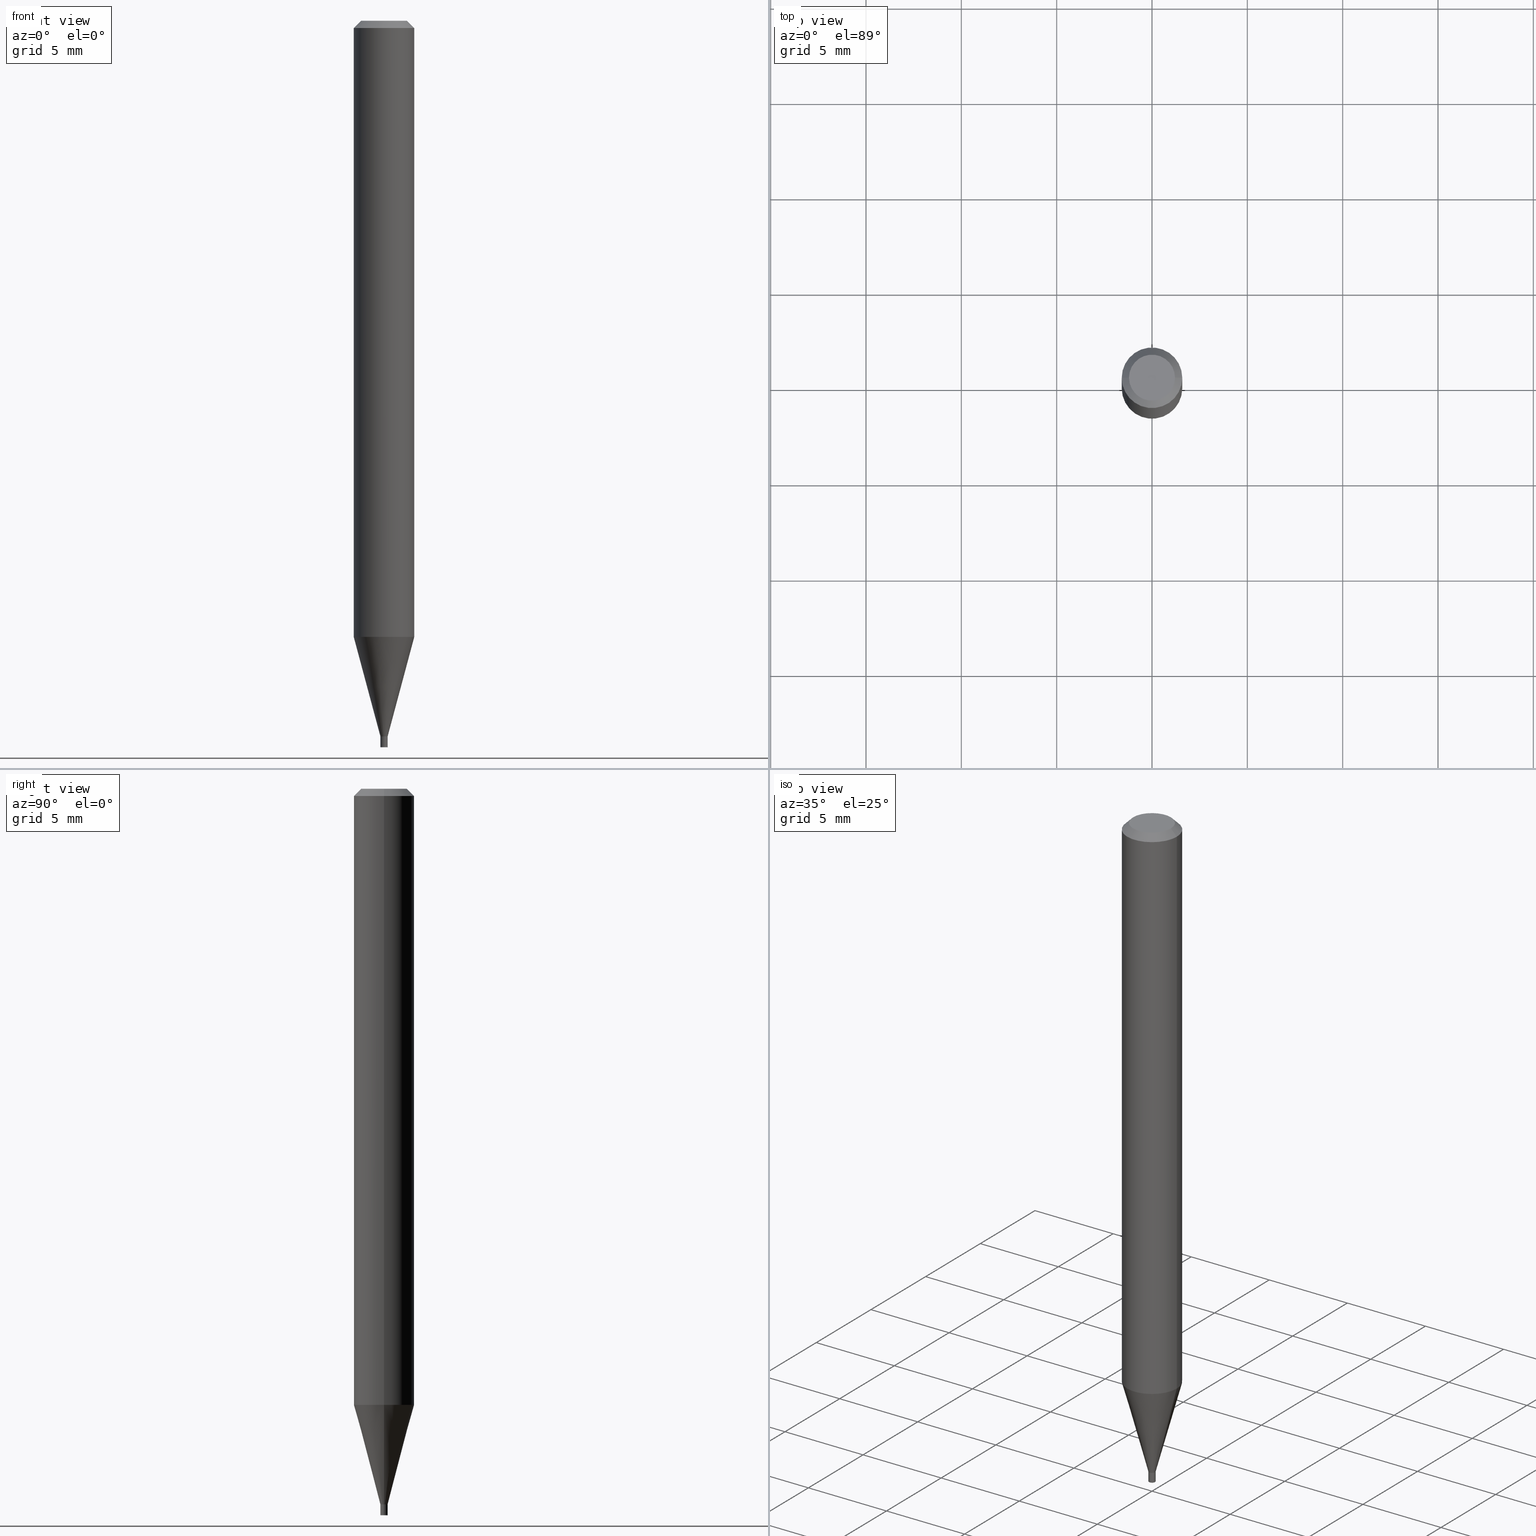
[diagram: canonical four-view strip — front | top / right | iso, engineering-drawing reading convention]
A machine part, canonical four-view strip (front | top / right | iso — engineering-drawing reading convention). The complete STEP part file that produces these views, byte-faithful:
ISO-10303-21;
HEADER;
FILE_DESCRIPTION (( 'STEP AP203' ),
    '1' );
FILE_NAME ('04050.STEP',
    '2024-03-14T16:55:30',
    ( '' ),
    ( '' ),
    'SwSTEP 2.0',
    'SolidWorks 2023',
    '' );
FILE_SCHEMA (( 'CONFIG_CONTROL_DESIGN' ));
ENDSEC;

DATA;
#1 = VERTEX_POINT ( 'NONE', #391 ) ;
#2 = PRODUCT_DEFINITION_SHAPE ( 'NONE', 'NONE',  #270 ) ;
#3 = ADVANCED_FACE ( 'NONE', ( #430 ), #123, .T. ) ;
#4 = ORIENTED_EDGE ( 'NONE', *, *, #354, .T. ) ;
#5 = VECTOR ( 'NONE', #232, 39.37007874015748143 ) ;
#6 = LOCAL_TIME ( 12, 55, 30.00000000000000000, #138 ) ;
#7 = DIRECTION ( 'NONE',  ( -2.445468806185136597E-29, 3.491481338843145583E-15, 1.000000000000000000 ) ) ;
#8 = CC_DESIGN_PERSON_AND_ORGANIZATION_ASSIGNMENT ( #60, #130, ( #408 ) ) ;
#9 = CARTESIAN_POINT ( 'NONE',  ( 0.000000000000000000, 0.000000000000000000, 0.000000000000000000 ) ) ;
#10 = ADVANCED_FACE ( 'NONE', ( #181 ), #332, .F. ) ;
#11 = DIRECTION ( 'NONE',  ( 1.000000000000000000, -6.982962677686333764E-15, 0.000000000000000000 ) ) ;
#12 = CARTESIAN_POINT ( 'NONE',  ( -0.007499999999999999722, -5.144652138020725996E-15, -1.477500000000000036 ) ) ;
#13 = VECTOR ( 'NONE', #328, 39.37007874015748143 ) ;
#14 = CARTESIAN_POINT ( 'NONE',  ( 0.000000000000000000, 0.000000000000000000, 0.000000000000000000 ) ) ;
#15 = CARTESIAN_POINT ( 'NONE',  ( -0.06250000000000000000, 3.840629472727444916E-16, -0.01499999999999999944 ) ) ;
#16 = CARTESIAN_POINT ( 'NONE',  ( -0.007500000000000468098, -5.105372972958736250E-15, -1.477500000000000036 ) ) ;
#17 = LINE ( 'NONE', #240, #355 ) ;
#18 =( NAMED_UNIT ( * ) PLANE_ANGLE_UNIT ( ) SI_UNIT ( $, .RADIAN. ) );
#19 = AXIS2_PLACEMENT_3D ( 'NONE', #153, #258, #157 ) ;
#20 = CIRCLE ( 'NONE', #407, 0.06250000000000000000 ) ;
#21 = LOCAL_TIME ( 12, 55, 30.00000000000000000, #343 ) ;
#22 = CC_DESIGN_DATE_AND_TIME_ASSIGNMENT ( #134, #176, ( #270 ) ) ;
#23 = APPROVAL_ROLE ( '' ) ;
#24 = CARTESIAN_POINT ( 'NONE',  ( 0.000000000000000000, 0.000000000000000000, 0.000000000000000000 ) ) ;
#25 = ORIENTED_EDGE ( 'NONE', *, *, #435, .F. ) ;
#26 = CARTESIAN_POINT ( 'NONE',  ( 0.06250000000000001388, -4.878427629232878036E-15, -1.272237205583713893 ) ) ;
#27 = CC_DESIGN_APPROVAL ( #74, ( #270 ) ) ;
#28 = CARTESIAN_POINT ( 'NONE',  ( 3.611957426735447238E-29, -5.156917937471325857E-15, -1.477000000000000091 ) ) ;
#29 = DATE_TIME_ROLE ( 'classification_date' ) ;
#30 = ORIENTED_EDGE ( 'NONE', *, *, #331, .F. ) ;
#31 = APPROVAL_ROLE ( '' ) ;
#32 = ORIENTED_EDGE ( 'NONE', *, *, #85, .F. ) ;
#33 = FACE_OUTER_BOUND ( 'NONE', #429, .T. ) ;
#34 = CIRCLE ( 'NONE', #369, 0.006999999999999999278 ) ;
#35 = CIRCLE ( 'NONE', #370, 0.04749999999999999362 ) ;
#36 = DIRECTION ( 'NONE',  ( 1.000000000000000000, -6.982962677686220168E-15, 0.000000000000000000 ) ) ;
#37 = CARTESIAN_POINT ( 'NONE',  ( 5.237222008268312646E-17, 0.007499999999994841522, -1.477500000000000036 ) ) ;
#38 = VERTEX_POINT ( 'NONE', #222 ) ;
#39 = ORIENTED_EDGE ( 'NONE', *, *, #402, .F. ) ;
#40 = DIRECTION ( 'NONE',  ( 2.438088387897960049E-29, -3.491481338843145188E-15, -1.000000000000000000 ) ) ;
#41 = AXIS2_PLACEMENT_3D ( 'NONE', #118, #297, #444 ) ;
#42 = DIRECTION ( 'NONE',  ( 0.7071067811865642261, -2.468850131082431399E-15, 0.7071067811865309194 ) ) ;
#43 = DIRECTION ( 'NONE',  ( 1.000000000000000000, -6.982962677686268288E-15, 0.000000000000000000 ) ) ;
#44 = ADVANCED_FACE ( 'NONE', ( #326 ), #186, .T. ) ;
#45 = DIRECTION ( 'NONE',  ( -2.445468806185136597E-29, 3.491481338843145583E-15, 1.000000000000000000 ) ) ;
#46 = CARTESIAN_POINT ( 'NONE',  ( 3.613180161138538918E-29, -5.158663678140747361E-15, -1.477500000000000036 ) ) ;
#47 = EDGE_CURVE ( 'NONE', #415, #234, #277, .T. ) ;
#48 = CARTESIAN_POINT ( 'NONE',  ( 0.000000000000000000, 0.000000000000000000, 0.000000000000000000 ) ) ;
#49 = DIRECTION ( 'NONE',  ( 1.000000000000000000, -6.982962677686220168E-15, 0.000000000000000000 ) ) ;
#50 = AXIS2_PLACEMENT_3D ( 'NONE', #101, #243, #314 ) ;
#51 = DIRECTION ( 'NONE',  ( 1.000000000000000000, -6.982962677686266711E-15, 4.876176775795935793E-29 ) ) ;
#52 = EDGE_CURVE ( 'NONE', #357, #73, #335, .T. ) ;
#53 = DIRECTION ( 'NONE',  ( 1.000000000000000000, -6.982962677686267499E-15, 4.876176775795936353E-29 ) ) ;
#54 = FACE_OUTER_BOUND ( 'NONE', #72, .T. ) ;
#55 = AXIS2_PLACEMENT_3D ( 'NONE', #112, #373, #53 ) ;
#56 = PERSON_AND_ORGANIZATION_ROLE ( 'creator' ) ;
#57 = ORIENTED_EDGE ( 'NONE', *, *, #459, .T. ) ;
#58 = ADVANCED_FACE ( 'NONE', ( #119 ), #358, .T. ) ;
#59 = PERSON ( 'UNSPECIFIED', 'UNSPECIFIED', 'UNSPECIFIED', ('UNSPECIFIED'), ('UNSPECIFIED'), ('UNSPECIFIED') ) ;
#60 = PERSON_AND_ORGANIZATION ( #59, #185 ) ;
#61 = ORIENTED_EDGE ( 'NONE', *, *, #382, .T. ) ;
#62 = DIRECTION ( 'NONE',  ( 1.000000000000000000, -6.982962677686268288E-15, 0.000000000000000000 ) ) ;
#63 = EDGE_CURVE ( 'NONE', #1, #139, #200, .T. ) ;
#64 = ORIENTED_EDGE ( 'NONE', *, *, #440, .F. ) ;
#65 = CONICAL_SURFACE ( 'NONE', #394, 0.007500000000000468098, 0.2617993877991498519 ) ;
#66 = PERSON_AND_ORGANIZATION_ROLE ( 'design_owner' ) ;
#67 = EDGE_CURVE ( 'NONE', #165, #131, #34, .T. ) ;
#68 = PERSON_AND_ORGANIZATION ( #59, #185 ) ;
#69 = ORIENTED_EDGE ( 'NONE', *, *, #382, .F. ) ;
#70 = CARTESIAN_POINT ( 'NONE',  ( 3.613180161138538918E-29, -5.158663678140747361E-15, -1.477500000000000036 ) ) ;
#71 = CIRCLE ( 'NONE', #329, 0.007500000000000468098 ) ;
#72 = EDGE_LOOP ( 'NONE', ( #25, #182, #321, #245 ) ) ;
#73 = VERTEX_POINT ( 'NONE', #364 ) ;
#74 = APPROVAL ( #163, 'UNSPECIFIED' ) ;
#75 = ORIENTED_EDGE ( 'NONE', *, *, #303, .T. ) ;
#76 = AXIS2_PLACEMENT_3D ( 'NONE', #294, #7, #227 ) ;
#77 = DIRECTION ( 'NONE',  ( 1.000000000000000000, -6.982962677686333764E-15, 0.000000000000000000 ) ) ;
#78 = CIRCLE ( 'NONE', #284, 0.06250000000000000000 ) ;
#79 = DIRECTION ( 'NONE',  ( -1.000000000000000000, 6.982962677686265922E-15, -4.876176775795935793E-29 ) ) ;
#80 = CARTESIAN_POINT ( 'NONE',  ( 3.613180161138540039E-29, -5.158663678140748150E-15, -1.477500000000000258 ) ) ;
#81 = CARTESIAN_POINT ( 'NONE',  ( 3.613180161138538918E-29, -5.158663678140747361E-15, -1.477500000000000036 ) ) ;
#82 = CARTESIAN_POINT ( 'NONE',  ( 1.799783034236790585E-44, -2.569613180961801607E-30, -7.359664656873714366E-16 ) ) ;
#83 = CLOSED_SHELL ( 'NONE', ( #416, #368, #142, #223 ) ) ;
#84 = CARTESIAN_POINT ( 'NONE',  ( 3.576687321579069994E-29, -5.368277968210015545E-15, -1.500000000000000222 ) ) ;
#85 = EDGE_CURVE ( 'NONE', #38, #250, #108, .T. ) ;
#86 = CIRCLE ( 'NONE', #109, 0.007500000000000195746 ) ;
#87 = CARTESIAN_POINT ( 'NONE',  ( 3.613180161138538918E-29, -5.158663678140747361E-15, -1.477500000000000036 ) ) ;
#88 = CC_DESIGN_PERSON_AND_ORGANIZATION_ASSIGNMENT ( #379, #66, ( #219 ) ) ;
#89 = COORDINATED_UNIVERSAL_TIME_OFFSET ( 5, 0, .BEHIND. ) ;
#90 = APPLICATION_CONTEXT ( 'configuration controlled 3d designs of mechanical parts and assemblies' ) ;
#91 = EDGE_CURVE ( 'NONE', #341, #316, #254, .T. ) ;
#92 = LINE ( 'NONE', #128, #5 ) ;
#93 = ORIENTED_EDGE ( 'NONE', *, *, #63, .F. ) ;
#94 = VECTOR ( 'NONE', #196, 39.37007874015748143 ) ;
#95 = ADVANCED_FACE ( 'NONE', ( #398 ), #184, .T. ) ;
#96 = DIRECTION ( 'NONE',  ( 0.000000000000000000, 0.000000000000000000, 1.000000000000000000 ) ) ;
#97 = CARTESIAN_POINT ( 'NONE',  ( 0.04749999999999999362, -4.035134999187590949E-16, -7.359664656873688728E-16 ) ) ;
#98 = FACE_OUTER_BOUND ( 'NONE', #282, .T. ) ;
#99 = SECURITY_CLASSIFICATION_LEVEL ( 'unclassified' ) ;
#100 = ORIENTED_EDGE ( 'NONE', *, *, #179, .T. ) ;
#101 = CARTESIAN_POINT ( 'NONE',  ( 3.111216400323118995E-29, -4.441992461877487944E-15, -1.272237205583713893 ) ) ;
#102 = CIRCLE ( 'NONE', #146, 0.06250000000000000000 ) ;
#103 = PERSON_AND_ORGANIZATION_ROLE ( 'design_supplier' ) ;
#104 = ORIENTED_EDGE ( 'NONE', *, *, #113, .T. ) ;
#105 = CARTESIAN_POINT ( 'NONE',  ( -0.06250000000000000000, -1.803093131130005093E-15, -0.01499999999999999944 ) ) ;
#106 = ORIENTED_EDGE ( 'NONE', *, *, #338, .T. ) ;
#107 = EDGE_LOOP ( 'NONE', ( #203, #393 ) ) ;
#108 = CIRCLE ( 'NONE', #192, 0.04749999999999999362 ) ;
#109 = AXIS2_PLACEMENT_3D ( 'NONE', #28, #171, #392 ) ;
#110 = EDGE_LOOP ( 'NONE', ( #378, #61, #450, #242 ) ) ;
#111 = ORIENTED_EDGE ( 'NONE', *, *, #402, .T. ) ;
#112 = CARTESIAN_POINT ( 'NONE',  ( 0.000000000000000000, 0.000000000000000000, 0.000000000000000000 ) ) ;
#113 = EDGE_CURVE ( 'NONE', #248, #316, #78, .T. ) ;
#114 = AXIS2_PLACEMENT_3D ( 'NONE', #9, #400, #51 ) ;
#115 = DIRECTION ( 'NONE',  ( 1.000000000000000000, -6.982962677686267499E-15, 4.852736867747366768E-29 ) ) ;
#116 = AXIS2_PLACEMENT_3D ( 'NONE', #290, #45, #77 ) ;
#117 = DIRECTION ( 'NONE',  ( -2.445468806185136597E-29, 3.491481338843145583E-15, 1.000000000000000000 ) ) ;
#118 = CARTESIAN_POINT ( 'NONE',  ( 3.668203209277704895E-29, -5.237222008264718177E-15, -1.500000000000000222 ) ) ;
#119 = FACE_OUTER_BOUND ( 'NONE', #238, .T. ) ;
#120 = EDGE_CURVE ( 'NONE', #38, #316, #260, .T. ) ;
#121 = CYLINDRICAL_SURFACE ( 'NONE', #206, 0.007499999999999999722 ) ;
#122 = DIRECTION ( 'NONE',  ( -2.445468806185136597E-29, 3.491481338843145583E-15, 1.000000000000000000 ) ) ;
#123 = CONICAL_SURFACE ( 'NONE', #383, 0.007500000000000468098, 0.2617993877991498519 ) ;
#124 = DIRECTION ( 'NONE',  ( 1.000000000000000000, -6.982962677686333764E-15, 0.000000000000000000 ) ) ;
#125 = CIRCLE ( 'NONE', #384, 0.007500000000000468098 ) ;
#126 = DIRECTION ( 'NONE',  ( -2.445468806185136597E-29, 3.491481338843145583E-15, 1.000000000000000000 ) ) ;
#127 = ADVANCED_FACE ( 'NONE', ( #327 ), #149, .F. ) ;
#128 = CARTESIAN_POINT ( 'NONE',  ( 0.06250000000000000000, -4.364351673553916694E-16, 3.047610484872459871E-30 ) ) ;
#129 = ADVANCED_FACE ( 'NONE', ( #160 ), #371, .F. ) ;
#130 = PERSON_AND_ORGANIZATION_ROLE ( 'creator' ) ;
#131 = VERTEX_POINT ( 'NONE', #330 ) ;
#132 = ORIENTED_EDGE ( 'NONE', *, *, #144, .T. ) ;
#133 = DIRECTION ( 'NONE',  ( 1.000000000000000000, -6.982962677686262766E-15, 0.000000000000000000 ) ) ;
#134 = DATE_AND_TIME ( #209, #453 ) ;
#135 = ORIENTED_EDGE ( 'NONE', *, *, #191, .T. ) ;
#136 = ADVANCED_FACE ( 'NONE', ( #221 ), #445, .F. ) ;
#137 = FACE_OUTER_BOUND ( 'NONE', #251, .T. ) ;
#138 = COORDINATED_UNIVERSAL_TIME_OFFSET ( 5, 0, .BEHIND. ) ;
#139 = VERTEX_POINT ( 'NONE', #262 ) ;
#140 = LINE ( 'NONE', #278, #268 ) ;
#141 = ORIENTED_EDGE ( 'NONE', *, *, #151, .F. ) ;
#142 = ADVANCED_FACE ( 'NONE', ( #288 ), #436, .T. ) ;
#143 = ORIENTED_EDGE ( 'NONE', *, *, #120, .F. ) ;
#144 = EDGE_CURVE ( 'NONE', #250, #248, #197, .T. ) ;
#145 = ORIENTED_EDGE ( 'NONE', *, *, #375, .F. ) ;
#146 = AXIS2_PLACEMENT_3D ( 'NONE', #148, #287, #252 ) ;
#147 = EDGE_LOOP ( 'NONE', ( #350, #111, #426, #377 ) ) ;
#148 = CARTESIAN_POINT ( 'NONE',  ( 3.668203209277705088E-31, -5.237222008264718399E-17, -0.01499999999999999944 ) ) ;
#149 = CYLINDRICAL_SURFACE ( 'NONE', #406, 0.007500000000000331922 ) ;
#150 = CARTESIAN_POINT ( 'NONE',  ( -0.007500000000000331922, 5.329070518200987239E-17, -3.689201317691342167E-31 ) ) ;
#151 = EDGE_CURVE ( 'NONE', #164, #234, #17, .T. ) ;
#152 = CARTESIAN_POINT ( 'NONE',  ( -0.06250000000000000000, 4.440892098500626162E-16, -3.074334431409316114E-30 ) ) ;
#153 = CARTESIAN_POINT ( 'NONE',  ( 0.000000000000000000, 0.000000000000000000, 0.000000000000000000 ) ) ;
#154 = DIRECTION ( 'NONE',  ( 1.000000000000000000, -6.982962677686265922E-15, 4.876176775795935793E-29 ) ) ;
#155 = APPLICATION_CONTEXT ( 'configuration controlled 3d designs of mechanical parts and assemblies' ) ;
#156 = ADVANCED_FACE ( 'NONE', ( #259 ), #336, .T. ) ;
#157 = DIRECTION ( 'NONE',  ( 1.000000000000000000, -6.982962677686266711E-15, 4.876176775795935793E-29 ) ) ;
#158 = FACE_OUTER_BOUND ( 'NONE', #281, .T. ) ;
#159 = CC_DESIGN_PERSON_AND_ORGANIZATION_ASSIGNMENT ( #456, #56, ( #270 ) ) ;
#160 = FACE_OUTER_BOUND ( 'NONE', #283, .T. ) ;
#161 = DIRECTION ( 'NONE',  ( -2.445468806185136597E-29, 3.491481338843145583E-15, 1.000000000000000000 ) ) ;
#162 = DIRECTION ( 'NONE',  ( -2.445468806185136597E-29, 3.491481338843145583E-15, 1.000000000000000000 ) ) ;
#163 = APPROVAL_STATUS ( 'not_yet_approved' ) ;
#164 = VERTEX_POINT ( 'NONE', #211 ) ;
#165 = VERTEX_POINT ( 'NONE', #269 ) ;
#166 = LINE ( 'NONE', #465, #300 ) ;
#167 = AXIS2_PLACEMENT_3D ( 'NONE', #409, #441, #43 ) ;
#168 = MANIFOLD_SOLID_BREP ( 'Body-Move/Copy2[2]', #214 ) ;
#169 = AXIS2_PLACEMENT_3D ( 'NONE', #309, #351, #62 ) ;
#170 = SECURITY_CLASSIFICATION ( '', '', #99 ) ;
#171 = DIRECTION ( 'NONE',  ( -2.445468806185136597E-29, 3.491481338843145583E-15, 1.000000000000000000 ) ) ;
#172 = APPROVAL ( #304, 'UNSPECIFIED' ) ;
#173 = PERSON_AND_ORGANIZATION ( #59, #185 ) ;
#174 = ORIENTED_EDGE ( 'NONE', *, *, #440, .T. ) ;
#175 = DIRECTION ( 'NONE',  ( 2.438088387897960049E-29, -3.491481338843145188E-15, -1.000000000000000000 ) ) ;
#176 = DATE_TIME_ROLE ( 'creation_date' ) ;
#177 = ORIENTED_EDGE ( 'NONE', *, *, #47, .T. ) ;
#178 = CARTESIAN_POINT ( 'NONE',  ( 3.111216400323118995E-29, -4.441992461877487944E-15, -1.272237205583713893 ) ) ;
#179 = EDGE_CURVE ( 'NONE', #73, #357, #235, .T. ) ;
#180 = AXIS2_PLACEMENT_3D ( 'NONE', #80, #298, #365 ) ;
#181 = FACE_OUTER_BOUND ( 'NONE', #107, .T. ) ;
#182 = ORIENTED_EDGE ( 'NONE', *, *, #390, .T. ) ;
#183 = ORIENTED_EDGE ( 'NONE', *, *, #303, .F. ) ;
#184 = CONICAL_SURFACE ( 'NONE', #116, 0.006999999999999999278, 0.7853981633974718157 ) ;
#185 = ORGANIZATION ( 'UNSPECIFIED', 'UNSPECIFIED', '' ) ;
#186 = CYLINDRICAL_SURFACE ( 'NONE', #19, 0.06250000000000000000 ) ;
#187 = CARTESIAN_POINT ( 'NONE',  ( -0.06250000000000001388, -3.997903252027424539E-15, -1.272237205583713893 ) ) ;
#188 = CARTESIAN_POINT ( 'NONE',  ( 3.613180161138540039E-29, -5.158663678140748150E-15, -1.477500000000000258 ) ) ;
#189 = DIRECTION ( 'NONE',  ( -2.445468806185136877E-29, 3.491481338843145188E-15, 1.000000000000000000 ) ) ;
#190 = DIRECTION ( 'NONE',  ( 1.000000000000000000, -6.982962677686267499E-15, 4.876176775795936353E-29 ) ) ;
#191 = EDGE_CURVE ( 'NONE', #234, #415, #86, .T. ) ;
#192 = AXIS2_PLACEMENT_3D ( 'NONE', #82, #117, #115 ) ;
#193 = DIRECTION ( 'NONE',  ( -2.445468806185136597E-29, 3.491481338843145583E-15, 1.000000000000000000 ) ) ;
#194 = CIRCLE ( 'NONE', #41, 0.007499999999999999722 ) ;
#195 = DIRECTION ( 'NONE',  ( -2.445468806185136597E-29, 3.491481338843145583E-15, 1.000000000000000000 ) ) ;
#196 = DIRECTION ( 'NONE',  ( -2.445468806185136877E-29, 3.491481338843145188E-15, 1.000000000000000000 ) ) ;
#197 = LINE ( 'NONE', #230, #399 ) ;
#198 =( LENGTH_UNIT ( ) NAMED_UNIT ( * ) SI_UNIT ( $, .METRE. ) );
#199 = EDGE_CURVE ( 'NONE', #250, #38, #35, .T. ) ;
#200 = CIRCLE ( 'NONE', #167, 0.007499999999999999722 ) ;
#201 = DIRECTION ( 'NONE',  ( 1.000000000000000000, -6.982962677686220168E-15, 0.000000000000000000 ) ) ;
#202 = AXIS2_PLACEMENT_3D ( 'NONE', #299, #353, #272 ) ;
#203 = ORIENTED_EDGE ( 'NONE', *, *, #85, .T. ) ;
#204 = APPLICATION_PROTOCOL_DEFINITION ( 'international standard', 'config_control_design', 1994, #90 ) ;
#205 = EDGE_LOOP ( 'NONE', ( #395, #4, #177, #141 ) ) ;
#206 = AXIS2_PLACEMENT_3D ( 'NONE', #448, #162, #190 ) ;
#207 = APPROVAL_PERSON_ORGANIZATION ( #339, #172, #273 ) ;
#208 = CALENDAR_DATE ( 2024, 14, 3 ) ;
#209 = CALENDAR_DATE ( 2024, 14, 3 ) ;
#210 = EDGE_LOOP ( 'NONE', ( #57, #319, #183, #145 ) ) ;
#211 = CARTESIAN_POINT ( 'NONE',  ( 0.007500000000000468098, -5.211035898223397201E-15, -1.477500000000000036 ) ) ;
#212 = VERTEX_POINT ( 'NONE', #213 ) ;
#213 = CARTESIAN_POINT ( 'NONE',  ( -0.007500000000000468098, -4.551638112493080789E-15, -1.477500000000000036 ) ) ;
#214 = CLOSED_SHELL ( 'NONE', ( #127, #156, #280, #44, #3, #361, #58, #264, #10, #129, #95, #136 ) ) ;
#215 = VECTOR ( 'NONE', #42, 39.37007874015748143 ) ;
#216 = ORIENTED_EDGE ( 'NONE', *, *, #144, .F. ) ;
#217 = ORIENTED_EDGE ( 'NONE', *, *, #354, .F. ) ;
#218 = ORIENTED_EDGE ( 'NONE', *, *, #47, .F. ) ;
#219 = PRODUCT ( '04050', '04050', '', ( #462 ) ) ;
#220 = LOCAL_TIME ( 12, 55, 30.00000000000000000, #236 ) ;
#221 = FACE_OUTER_BOUND ( 'NONE', #423, .T. ) ;
#222 = CARTESIAN_POINT ( 'NONE',  ( -0.04749999999999999362, 3.578768372314198180E-16, -7.359664656873739018E-16 ) ) ;
#223 = ADVANCED_FACE ( 'NONE', ( #33 ), #427, .F. ) ;
#224 = DIRECTION ( 'NONE',  ( -2.445468806185136597E-29, 3.491481338843145583E-15, 1.000000000000000000 ) ) ;
#225 =( CONVERSION_BASED_UNIT ( 'INCH', #403 ) LENGTH_UNIT ( ) NAMED_UNIT ( #289 ) );
#226 = AXIS2_PLACEMENT_3D ( 'NONE', #87, #224, #256 ) ;
#227 = DIRECTION ( 'NONE',  ( 1.000000000000000000, -6.982962677686214646E-15, 0.000000000000000000 ) ) ;
#228 = VECTOR ( 'NONE', #324, 39.37007874015748143 ) ;
#229 = DIRECTION ( 'NONE',  ( -2.445468806185136597E-29, 3.491481338843145583E-15, 1.000000000000000000 ) ) ;
#230 = CARTESIAN_POINT ( 'NONE',  ( 0.06250000000000000000, -4.811533449433679005E-16, -0.01499999999999999944 ) ) ;
#231 = EDGE_CURVE ( 'NONE', #341, #237, #20, .T. ) ;
#232 = DIRECTION ( 'NONE',  ( -2.445468806185136877E-29, 3.491481338843145188E-15, 1.000000000000000000 ) ) ;
#233 = DIRECTION ( 'NONE',  ( -2.445468806185136597E-29, 3.491481338843145583E-15, 1.000000000000000000 ) ) ;
#234 = VERTEX_POINT ( 'NONE', #246 ) ;
#235 = CIRCLE ( 'NONE', #169, 0.007499999999999999722 ) ;
#236 = COORDINATED_UNIVERSAL_TIME_OFFSET ( 5, 0, .BEHIND. ) ;
#237 = VERTEX_POINT ( 'NONE', #26 ) ;
#238 = EDGE_LOOP ( 'NONE', ( #396, #356, #434, #30 ) ) ;
#239 = CARTESIAN_POINT ( 'NONE',  ( 3.668203209277705088E-31, -5.237222008264718399E-17, -0.01499999999999999944 ) ) ;
#240 = CARTESIAN_POINT ( 'NONE',  ( 0.007500000000000331922, -5.237222008264931638E-17, 3.657132581847113782E-31 ) ) ;
#241 = DATE_AND_TIME ( #422, #6 ) ;
#242 = ORIENTED_EDGE ( 'NONE', *, *, #338, .F. ) ;
#243 = DIRECTION ( 'NONE',  ( -2.445468806185136597E-29, 3.491481338843145583E-15, 1.000000000000000000 ) ) ;
#244 = ORIENTED_EDGE ( 'NONE', *, *, #91, .T. ) ;
#245 = ORIENTED_EDGE ( 'NONE', *, *, #231, .F. ) ;
#246 = CARTESIAN_POINT ( 'NONE',  ( 0.007500000000000195746, -5.209290157553974908E-15, -1.477000000000000091 ) ) ;
#247 = ADVANCED_BREP_SHAPE_REPRESENTATION ( '04050', ( #323, #168, #279 ), #421 ) ;
#248 = VERTEX_POINT ( 'NONE', #306 ) ;
#249 = VECTOR ( 'NONE', #337, 39.37007874015748854 ) ;
#250 = VERTEX_POINT ( 'NONE', #97 ) ;
#251 = EDGE_LOOP ( 'NONE', ( #388, #132, #104, #143 ) ) ;
#252 = DIRECTION ( 'NONE',  ( 1.000000000000000000, -6.982962677686266711E-15, 0.000000000000000000 ) ) ;
#253 = DIRECTION ( 'NONE',  ( -2.445468806185136877E-29, 3.491481338843145188E-15, 1.000000000000000000 ) ) ;
#254 = LINE ( 'NONE', #152, #431 ) ;
#255 = EDGE_CURVE ( 'NONE', #139, #357, #166, .T. ) ;
#256 = DIRECTION ( 'NONE',  ( 1.000000000000000000, -6.982962677686268288E-15, 0.000000000000000000 ) ) ;
#257 = CC_DESIGN_PERSON_AND_ORGANIZATION_ASSIGNMENT ( #413, #385, ( #170 ) ) ;
#258 = DIRECTION ( 'NONE',  ( -2.445468806185136597E-29, 3.491481338843145583E-15, 1.000000000000000000 ) ) ;
#259 = FACE_OUTER_BOUND ( 'NONE', #110, .T. ) ;
#260 = LINE ( 'NONE', #15, #228 ) ;
#261 = AXIS2_PLACEMENT_3D ( 'NONE', #239, #381, #457 ) ;
#262 = CARTESIAN_POINT ( 'NONE',  ( -0.007499999999999999722, -5.144652138020725996E-15, -1.500000000000000222 ) ) ;
#263 = CARTESIAN_POINT ( 'NONE',  ( -0.007500000000000195746, -5.103627232289317901E-15, -1.477000000000000091 ) ) ;
#264 = ADVANCED_FACE ( 'NONE', ( #98 ), #293, .T. ) ;
#265 = UNCERTAINTY_MEASURE_WITH_UNIT (LENGTH_MEASURE( 1.000000000000000082E-05 ), #225, 'distance_accuracy_value', 'NONE');
#266 = LINE ( 'NONE', #295, #432 ) ;
#267 = PERSON_AND_ORGANIZATION ( #59, #185 ) ;
#268 = VECTOR ( 'NONE', #424, 39.37007874015748143 ) ;
#269 = CARTESIAN_POINT ( 'NONE',  ( 0.006999999999999999278, -5.207544416884552616E-15, -1.477500000000000258 ) ) ;
#270 = PRODUCT_DEFINITION ( 'UNKNOWN', '', #408, #451 ) ;
#271 = ORIENTED_EDGE ( 'NONE', *, *, #331, .T. ) ;
#272 = DIRECTION ( 'NONE',  ( 1.000000000000000000, -6.982962677686333764E-15, 0.000000000000000000 ) ) ;
#273 = APPROVAL_ROLE ( '' ) ;
#274 = ORIENTED_EDGE ( 'NONE', *, *, #459, .F. ) ;
#275 = CARTESIAN_POINT ( 'NONE',  ( 3.668203209277705088E-31, -5.237222008264718399E-17, -0.01499999999999999944 ) ) ;
#276 = EDGE_LOOP ( 'NONE', ( #75, #244, #305, #454 ) ) ;
#277 = CIRCLE ( 'NONE', #76, 0.007500000000000195746 ) ;
#278 = CARTESIAN_POINT ( 'NONE',  ( 0.007499999999999999722, -5.237222008264700526E-17, 3.657132581846952195E-31 ) ) ;
#279 = AXIS2_PLACEMENT_3D ( 'NONE', #24, #96, #414 ) ;
#280 = ADVANCED_FACE ( 'NONE', ( #137 ), #318, .T. ) ;
#281 = EDGE_LOOP ( 'NONE', ( #93, #39 ) ) ;
#282 = EDGE_LOOP ( 'NONE', ( #216, #32, #312, #271 ) ) ;
#283 = EDGE_LOOP ( 'NONE', ( #307, #64 ) ) ;
#284 = AXIS2_PLACEMENT_3D ( 'NONE', #438, #195, #443 ) ;
#285 = CC_DESIGN_SECURITY_CLASSIFICATION ( #170, ( #408 ) ) ;
#286 = ORIENTED_EDGE ( 'NONE', *, *, #255, .T. ) ;
#287 = DIRECTION ( 'NONE',  ( -2.445468806185136597E-29, 3.491481338843145583E-15, 1.000000000000000000 ) ) ;
#288 = FACE_OUTER_BOUND ( 'NONE', #147, .T. ) ;
#289 = DIMENSIONAL_EXPONENTS ( 1.000000000000000000, 0.000000000000000000, 0.000000000000000000, 0.000000000000000000, 0.000000000000000000, 0.000000000000000000, 0.000000000000000000 ) ;
#290 = CARTESIAN_POINT ( 'NONE',  ( 3.613180161138540039E-29, -5.158663678140748150E-15, -1.477500000000000258 ) ) ;
#291 = DATE_AND_TIME ( #363, #433 ) ;
#292 = AXIS2_PLACEMENT_3D ( 'NONE', #404, #40, #79 ) ;
#293 = CONICAL_SURFACE ( 'NONE', #261, 0.06250000000000000000, 0.7853981633974729260 ) ;
#294 = CARTESIAN_POINT ( 'NONE',  ( 3.611957426735447238E-29, -5.156917937471325857E-15, -1.477000000000000091 ) ) ;
#295 = CARTESIAN_POINT ( 'NONE',  ( 0.007500000000000468098, -5.211035898223397201E-15, -1.477500000000000036 ) ) ;
#296 = DIRECTION ( 'NONE',  ( 1.000000000000000000, -6.982962677686266711E-15, 4.876176775795935793E-29 ) ) ;
#297 = DIRECTION ( 'NONE',  ( -2.445468806185136597E-29, 3.491481338843145583E-15, 1.000000000000000000 ) ) ;
#298 = DIRECTION ( 'NONE',  ( -2.438088387897960049E-29, 3.491481338843145188E-15, 1.000000000000000000 ) ) ;
#299 = CARTESIAN_POINT ( 'NONE',  ( 3.613180161138540039E-29, -5.158663678140748150E-15, -1.477500000000000258 ) ) ;
#300 = VECTOR ( 'NONE', #417, 39.37007874015748143 ) ;
#301 = APPROVAL_PERSON_ORGANIZATION ( #68, #74, #23 ) ;
#302 =( NAMED_UNIT ( * ) SI_UNIT ( $, .STERADIAN. ) SOLID_ANGLE_UNIT ( ) );
#303 = EDGE_CURVE ( 'NONE', #237, #341, #308, .T. ) ;
#304 = APPROVAL_STATUS ( 'not_yet_approved' ) ;
#305 = ORIENTED_EDGE ( 'NONE', *, *, #113, .F. ) ;
#306 = CARTESIAN_POINT ( 'NONE',  ( 0.06250000000000000000, -4.888073874380388472E-16, -0.01499999999999999944 ) ) ;
#307 = ORIENTED_EDGE ( 'NONE', *, *, #67, .F. ) ;
#308 = CIRCLE ( 'NONE', #50, 0.06250000000000000000 ) ;
#309 = CARTESIAN_POINT ( 'NONE',  ( 3.613180161138538918E-29, -5.158663678140747361E-15, -1.477500000000000036 ) ) ;
#310 = APPROVAL_DATE_TIME ( #315, #74 ) ;
#311 = DIRECTION ( 'NONE',  ( -2.445468806185136597E-29, 3.491481338843145583E-15, 1.000000000000000000 ) ) ;
#312 = ORIENTED_EDGE ( 'NONE', *, *, #120, .T. ) ;
#313 = EDGE_CURVE ( 'NONE', #1, #73, #140, .T. ) ;
#314 = DIRECTION ( 'NONE',  ( 1.000000000000000000, -6.982962677686262766E-15, 0.000000000000000000 ) ) ;
#315 = DATE_AND_TIME ( #425, #21 ) ;
#316 = VERTEX_POINT ( 'NONE', #105 ) ;
#317 = DIRECTION ( 'NONE',  ( -2.445468806185136597E-29, 3.491481338843145583E-15, 1.000000000000000000 ) ) ;
#318 = CONICAL_SURFACE ( 'NONE', #345, 0.06250000000000000000, 0.7853981633974729260 ) ;
#319 = ORIENTED_EDGE ( 'NONE', *, *, #435, .T. ) ;
#320 = ORIENTED_EDGE ( 'NONE', *, *, #313, .F. ) ;
#321 = ORIENTED_EDGE ( 'NONE', *, *, #375, .T. ) ;
#322 = CIRCLE ( 'NONE', #360, 0.006999999999999999278 ) ;
#323 = MANIFOLD_SOLID_BREP ( 'Body-Move/Copy2[1]', #83 ) ;
#324 = DIRECTION ( 'NONE',  ( -0.7071067811865648922, 2.468850131082438893E-15, -0.7071067811865301422 ) ) ;
#325 = LINE ( 'NONE', #150, #94 ) ;
#326 = FACE_OUTER_BOUND ( 'NONE', #276, .T. ) ;
#327 = FACE_OUTER_BOUND ( 'NONE', #205, .T. ) ;
#328 = DIRECTION ( 'NONE',  ( -0.7071067811865642261, 7.493145998870414114E-15, 0.7071067811865309194 ) ) ;
#329 = AXIS2_PLACEMENT_3D ( 'NONE', #81, #229, #201 ) ;
#330 = CARTESIAN_POINT ( 'NONE',  ( -0.006999999999999999278, -5.106276459463429102E-15, -1.477500000000000258 ) ) ;
#331 = EDGE_CURVE ( 'NONE', #316, #248, #102, .T. ) ;
#332 = PLANE ( 'NONE',  #292 ) ;
#333 = LINE ( 'NONE', #16, #249 ) ;
#334 = DIRECTION ( 'NONE',  ( 0.7071067811865648922, -7.319954787623314421E-15, -0.7071067811865301422 ) ) ;
#335 = CIRCLE ( 'NONE', #226, 0.007499999999999999722 ) ;
#336 = CONICAL_SURFACE ( 'NONE', #202, 0.006999999999999999278, 0.7853981633974718157 ) ;
#337 = DIRECTION ( 'NONE',  ( -0.2588190451025211281, 5.211531920934547886E-15, 0.9659258262890679791 ) ) ;
#338 = EDGE_CURVE ( 'NONE', #165, #234, #397, .T. ) ;
#339 = PERSON_AND_ORGANIZATION ( #59, #185 ) ;
#340 = CC_DESIGN_DATE_AND_TIME_ASSIGNMENT ( #347, #29, ( #170 ) ) ;
#341 = VERTEX_POINT ( 'NONE', #187 ) ;
#342 = DIRECTION ( 'NONE',  ( -1.000000000000000000, 6.982962677686265922E-15, -4.876176775795935793E-29 ) ) ;
#343 = COORDINATED_UNIVERSAL_TIME_OFFSET ( 5, 0, .BEHIND. ) ;
#344 = ORIENTED_EDGE ( 'NONE', *, *, #63, .T. ) ;
#345 = AXIS2_PLACEMENT_3D ( 'NONE', #275, #420, #389 ) ;
#346 = CC_DESIGN_APPROVAL ( #172, ( #408 ) ) ;
#347 = DATE_AND_TIME ( #208, #220 ) ;
#348 = CC_DESIGN_PERSON_AND_ORGANIZATION_ASSIGNMENT ( #267, #103, ( #408 ) ) ;
#349 = APPROVAL_STATUS ( 'not_yet_approved' ) ;
#350 = ORIENTED_EDGE ( 'NONE', *, *, #255, .F. ) ;
#351 = DIRECTION ( 'NONE',  ( -2.445468806185136597E-29, 3.491481338843145583E-15, 1.000000000000000000 ) ) ;
#352 = DIRECTION ( 'NONE',  ( -2.445468806185136597E-29, 3.491481338843145583E-15, 1.000000000000000000 ) ) ;
#353 = DIRECTION ( 'NONE',  ( -2.445468806185136597E-29, 3.491481338843145583E-15, 1.000000000000000000 ) ) ;
#354 = EDGE_CURVE ( 'NONE', #212, #415, #325, .T. ) ;
#355 = VECTOR ( 'NONE', #253, 39.37007874015748143 ) ;
#356 = ORIENTED_EDGE ( 'NONE', *, *, #231, .T. ) ;
#357 = VERTEX_POINT ( 'NONE', #12 ) ;
#358 = CYLINDRICAL_SURFACE ( 'NONE', #114, 0.06250000000000000000 ) ;
#359 = CARTESIAN_POINT ( 'NONE',  ( 0.006999999999999999278, -5.207544416884552616E-15, -1.477500000000000258 ) ) ;
#360 = AXIS2_PLACEMENT_3D ( 'NONE', #376, #233, #124 ) ;
#361 = ADVANCED_FACE ( 'NONE', ( #54 ), #65, .T. ) ;
#362 = DIRECTION ( 'NONE',  ( -2.445468806185136597E-29, 3.491481338843145583E-15, 1.000000000000000000 ) ) ;
#363 = CALENDAR_DATE ( 2024, 14, 3 ) ;
#364 = CARTESIAN_POINT ( 'NONE',  ( 0.007499999999999999722, -5.211035898223394834E-15, -1.477500000000000036 ) ) ;
#365 = DIRECTION ( 'NONE',  ( 1.000000000000000000, -6.982962677686265922E-15, 4.876176775795935793E-29 ) ) ;
#366 = DIRECTION ( 'NONE',  ( 1.000000000000000000, -6.982962677686220168E-15, 0.000000000000000000 ) ) ;
#367 = APPROVAL_DATE_TIME ( #291, #428 ) ;
#368 = ADVANCED_FACE ( 'NONE', ( #158 ), #410, .F. ) ;
#369 = AXIS2_PLACEMENT_3D ( 'NONE', #188, #193, #11 ) ;
#370 = AXIS2_PLACEMENT_3D ( 'NONE', #455, #311, #452 ) ;
#371 = PLANE ( 'NONE',  #180 ) ;
#372 = FACE_OUTER_BOUND ( 'NONE', #419, .T. ) ;
#373 = DIRECTION ( 'NONE',  ( -2.445468806185136597E-29, 3.491481338843145583E-15, 1.000000000000000000 ) ) ;
#374 = CARTESIAN_POINT ( 'NONE',  ( -0.006999999999999999278, -5.108925686637541881E-15, -1.477500000000000258 ) ) ;
#375 = EDGE_CURVE ( 'NONE', #164, #237, #266, .T. ) ;
#376 = CARTESIAN_POINT ( 'NONE',  ( 3.613180161138540039E-29, -5.158663678140748150E-15, -1.477500000000000258 ) ) ;
#377 = ORIENTED_EDGE ( 'NONE', *, *, #52, .F. ) ;
#378 = ORIENTED_EDGE ( 'NONE', *, *, #67, .T. ) ;
#379 = PERSON_AND_ORGANIZATION ( #59, #185 ) ;
#380 = ORIENTED_EDGE ( 'NONE', *, *, #179, .F. ) ;
#381 = DIRECTION ( 'NONE',  ( 2.445468806185136597E-29, -3.491481338843145583E-15, -1.000000000000000000 ) ) ;
#382 = EDGE_CURVE ( 'NONE', #131, #415, #442, .T. ) ;
#383 = AXIS2_PLACEMENT_3D ( 'NONE', #70, #352, #36 ) ;
#384 = AXIS2_PLACEMENT_3D ( 'NONE', #46, #161, #366 ) ;
#385 = PERSON_AND_ORGANIZATION_ROLE ( 'classification_officer' ) ;
#386 = PRODUCT_RELATED_PRODUCT_CATEGORY ( 'detail', '', ( #219 ) ) ;
#387 = COORDINATED_UNIVERSAL_TIME_OFFSET ( 5, 0, .BEHIND. ) ;
#388 = ORIENTED_EDGE ( 'NONE', *, *, #199, .F. ) ;
#389 = DIRECTION ( 'NONE',  ( -1.000000000000000000, 6.982962677686266711E-15, 0.000000000000000000 ) ) ;
#390 = EDGE_CURVE ( 'NONE', #212, #164, #71, .T. ) ;
#391 = CARTESIAN_POINT ( 'NONE',  ( 0.007499999999999999722, -5.289594228347365650E-15, -1.500000000000000222 ) ) ;
#392 = DIRECTION ( 'NONE',  ( 1.000000000000000000, -6.982962677686214646E-15, 0.000000000000000000 ) ) ;
#393 = ORIENTED_EDGE ( 'NONE', *, *, #199, .T. ) ;
#394 = AXIS2_PLACEMENT_3D ( 'NONE', #405, #126, #49 ) ;
#395 = ORIENTED_EDGE ( 'NONE', *, *, #390, .F. ) ;
#396 = ORIENTED_EDGE ( 'NONE', *, *, #91, .F. ) ;
#397 = LINE ( 'NONE', #359, #215 ) ;
#398 = FACE_OUTER_BOUND ( 'NONE', #463, .T. ) ;
#399 = VECTOR ( 'NONE', #334, 39.37007874015748143 ) ;
#400 = DIRECTION ( 'NONE',  ( -2.445468806185136597E-29, 3.491481338843145583E-15, 1.000000000000000000 ) ) ;
#401 = DIRECTION ( 'NONE',  ( 1.000000000000000000, -6.982962677686266711E-15, 4.876176775795935793E-29 ) ) ;
#402 = EDGE_CURVE ( 'NONE', #139, #1, #194, .T. ) ;
#403 = LENGTH_MEASURE_WITH_UNIT ( LENGTH_MEASURE( 0.02539999999999999897 ), #198 );
#404 = CARTESIAN_POINT ( 'NONE',  ( 3.316907271900976096E-16, 0.04749999999999999362, -5.338285964387351640E-16 ) ) ;
#405 = CARTESIAN_POINT ( 'NONE',  ( 3.613180161138538918E-29, -5.158663678140747361E-15, -1.477500000000000036 ) ) ;
#406 = AXIS2_PLACEMENT_3D ( 'NONE', #48, #362, #401 ) ;
#407 = AXIS2_PLACEMENT_3D ( 'NONE', #178, #317, #133 ) ;
#408 = PRODUCT_DEFINITION_FORMATION_WITH_SPECIFIED_SOURCE ( 'ANY', '', #219, .NOT_KNOWN. ) ;
#409 = CARTESIAN_POINT ( 'NONE',  ( 3.668203209277704895E-29, -5.237222008264718177E-15, -1.500000000000000222 ) ) ;
#410 = PLANE ( 'NONE',  #412 ) ;
#411 = DIRECTION ( 'NONE',  ( 0.2588190451025211281, 1.565188264969622954E-15, 0.9659258262890679791 ) ) ;
#412 = AXIS2_PLACEMENT_3D ( 'NONE', #84, #446, #154 ) ;
#413 = PERSON_AND_ORGANIZATION ( #59, #185 ) ;
#414 = DIRECTION ( 'NONE',  ( 1.000000000000000000, 0.000000000000000000, 0.000000000000000000 ) ) ;
#415 = VERTEX_POINT ( 'NONE', #263 ) ;
#416 = ADVANCED_FACE ( 'NONE', ( #372 ), #121, .T. ) ;
#417 = DIRECTION ( 'NONE',  ( -2.445468806185136877E-29, 3.491481338843145188E-15, 1.000000000000000000 ) ) ;
#418 = APPLICATION_PROTOCOL_DEFINITION ( 'international standard', 'config_control_design', 1994, #155 ) ;
#419 = EDGE_LOOP ( 'NONE', ( #344, #286, #380, #320 ) ) ;
#420 = DIRECTION ( 'NONE',  ( 2.445468806185136597E-29, -3.491481338843145583E-15, -1.000000000000000000 ) ) ;
#421 =( GEOMETRIC_REPRESENTATION_CONTEXT ( 3 ) GLOBAL_UNCERTAINTY_ASSIGNED_CONTEXT ( ( #265 ) ) GLOBAL_UNIT_ASSIGNED_CONTEXT ( ( #225, #18, #302 ) ) REPRESENTATION_CONTEXT ( 'NONE', 'WORKASPACE' ) );
#422 = CALENDAR_DATE ( 2024, 14, 3 ) ;
#423 = EDGE_LOOP ( 'NONE', ( #217, #274, #466, #135 ) ) ;
#424 = DIRECTION ( 'NONE',  ( -2.445468806185136877E-29, 3.491481338843145188E-15, 1.000000000000000000 ) ) ;
#425 = CALENDAR_DATE ( 2024, 14, 3 ) ;
#426 = ORIENTED_EDGE ( 'NONE', *, *, #313, .T. ) ;
#427 = PLANE ( 'NONE',  #461 ) ;
#428 = APPROVAL ( #349, 'UNSPECIFIED' ) ;
#429 = EDGE_LOOP ( 'NONE', ( #100, #458 ) ) ;
#430 = FACE_OUTER_BOUND ( 'NONE', #210, .T. ) ;
#431 = VECTOR ( 'NONE', #189, 39.37007874015748143 ) ;
#432 = VECTOR ( 'NONE', #411, 39.37007874015748854 ) ;
#433 = LOCAL_TIME ( 12, 55, 30.00000000000000000, #89 ) ;
#434 = ORIENTED_EDGE ( 'NONE', *, *, #437, .T. ) ;
#435 = EDGE_CURVE ( 'NONE', #212, #341, #333, .T. ) ;
#436 = CYLINDRICAL_SURFACE ( 'NONE', #55, 0.007499999999999999722 ) ;
#437 = EDGE_CURVE ( 'NONE', #237, #248, #92, .T. ) ;
#438 = CARTESIAN_POINT ( 'NONE',  ( 3.668203209277705088E-31, -5.237222008264718399E-17, -0.01499999999999999944 ) ) ;
#439 = AXIS2_PLACEMENT_3D ( 'NONE', #14, #122, #296 ) ;
#440 = EDGE_CURVE ( 'NONE', #131, #165, #322, .T. ) ;
#441 = DIRECTION ( 'NONE',  ( -2.445468806185136597E-29, 3.491481338843145583E-15, 1.000000000000000000 ) ) ;
#442 = LINE ( 'NONE', #374, #13 ) ;
#443 = DIRECTION ( 'NONE',  ( 1.000000000000000000, -6.982962677686266711E-15, 0.000000000000000000 ) ) ;
#444 = DIRECTION ( 'NONE',  ( 1.000000000000000000, -6.982962677686268288E-15, 0.000000000000000000 ) ) ;
#445 = CYLINDRICAL_SURFACE ( 'NONE', #439, 0.007500000000000331922 ) ;
#446 = DIRECTION ( 'NONE',  ( -2.438088387897960049E-29, 3.491481338843145188E-15, 1.000000000000000000 ) ) ;
#447 = CC_DESIGN_APPROVAL ( #428, ( #170 ) ) ;
#448 = CARTESIAN_POINT ( 'NONE',  ( 0.000000000000000000, 0.000000000000000000, 0.000000000000000000 ) ) ;
#449 = APPROVAL_DATE_TIME ( #241, #172 ) ;
#450 = ORIENTED_EDGE ( 'NONE', *, *, #191, .F. ) ;
#451 = DESIGN_CONTEXT ( 'detailed design', #90, 'design' ) ;
#452 = DIRECTION ( 'NONE',  ( 1.000000000000000000, -6.982962677686267499E-15, 4.852736867747366768E-29 ) ) ;
#453 = LOCAL_TIME ( 12, 55, 30.00000000000000000, #387 ) ;
#454 = ORIENTED_EDGE ( 'NONE', *, *, #437, .F. ) ;
#455 = CARTESIAN_POINT ( 'NONE',  ( 1.799783034236790585E-44, -2.569613180961801607E-30, -7.359664656873714366E-16 ) ) ;
#456 = PERSON_AND_ORGANIZATION ( #59, #185 ) ;
#457 = DIRECTION ( 'NONE',  ( -1.000000000000000000, 6.982962677686266711E-15, 0.000000000000000000 ) ) ;
#458 = ORIENTED_EDGE ( 'NONE', *, *, #52, .T. ) ;
#459 = EDGE_CURVE ( 'NONE', #164, #212, #125, .T. ) ;
#460 = SHAPE_DEFINITION_REPRESENTATION ( #2, #247 ) ;
#461 = AXIS2_PLACEMENT_3D ( 'NONE', #37, #175, #342 ) ;
#462 = MECHANICAL_CONTEXT ( 'NONE', #155, 'mechanical' ) ;
#463 = EDGE_LOOP ( 'NONE', ( #69, #174, #106, #218 ) ) ;
#464 = APPROVAL_PERSON_ORGANIZATION ( #173, #428, #31 ) ;
#465 = CARTESIAN_POINT ( 'NONE',  ( -0.007499999999999999722, 5.329070518200751197E-17, -3.689201317691179266E-31 ) ) ;
#466 = ORIENTED_EDGE ( 'NONE', *, *, #151, .T. ) ;
ENDSEC;
END-ISO-10303-21;
